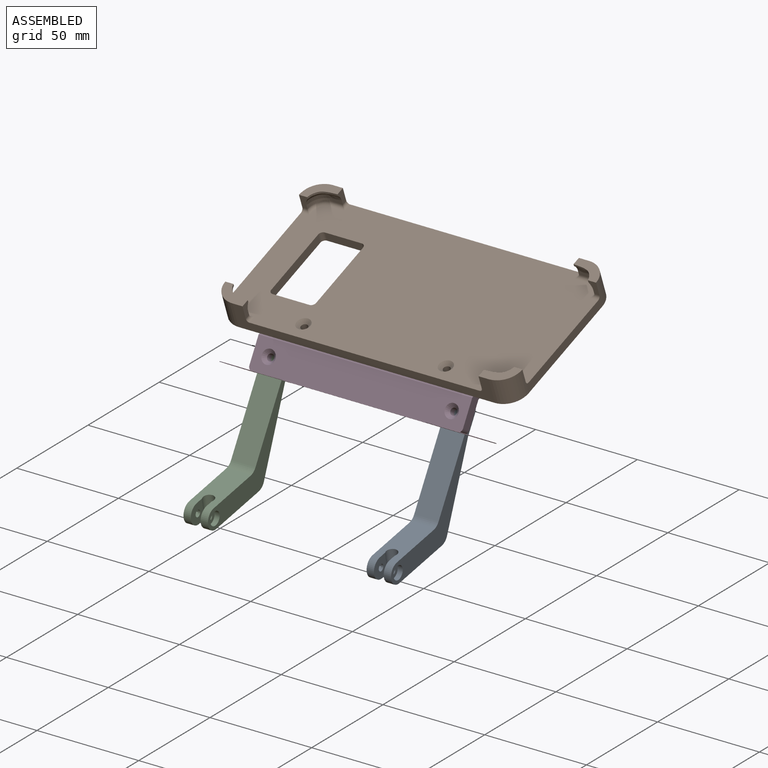
[diagram: assembled view]
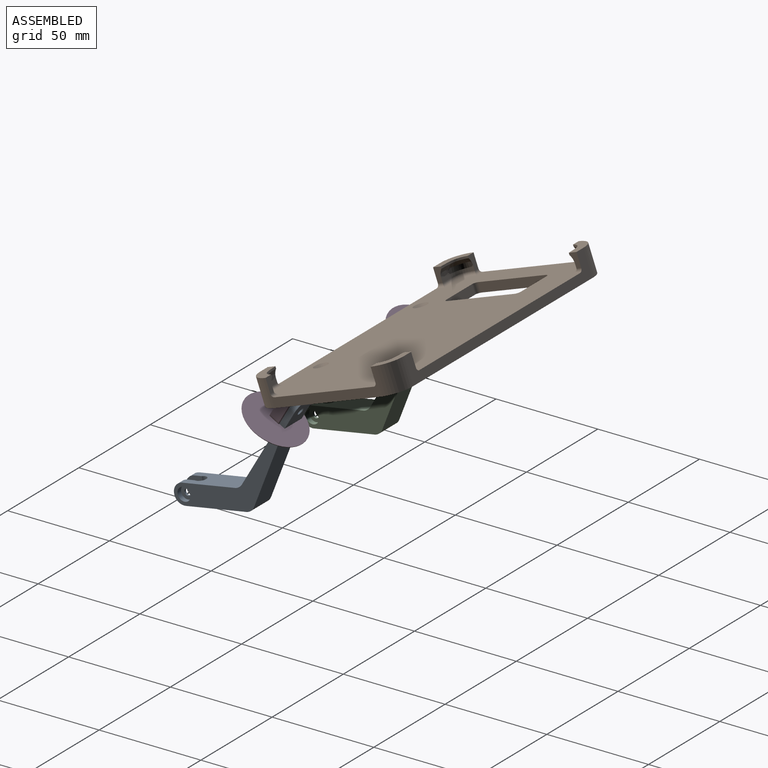
[diagram: assembled view, second angle]
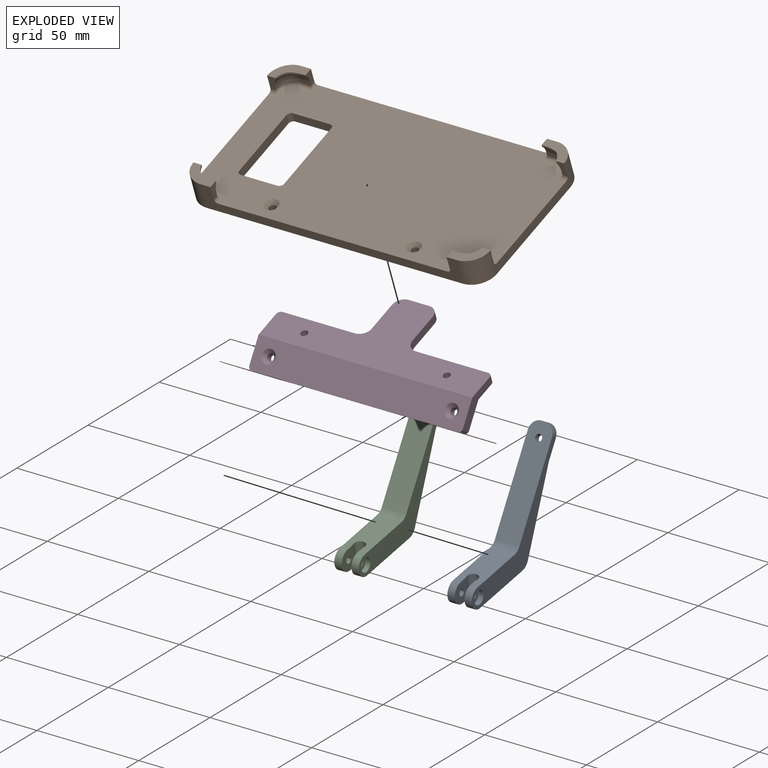
[diagram: exploded view]
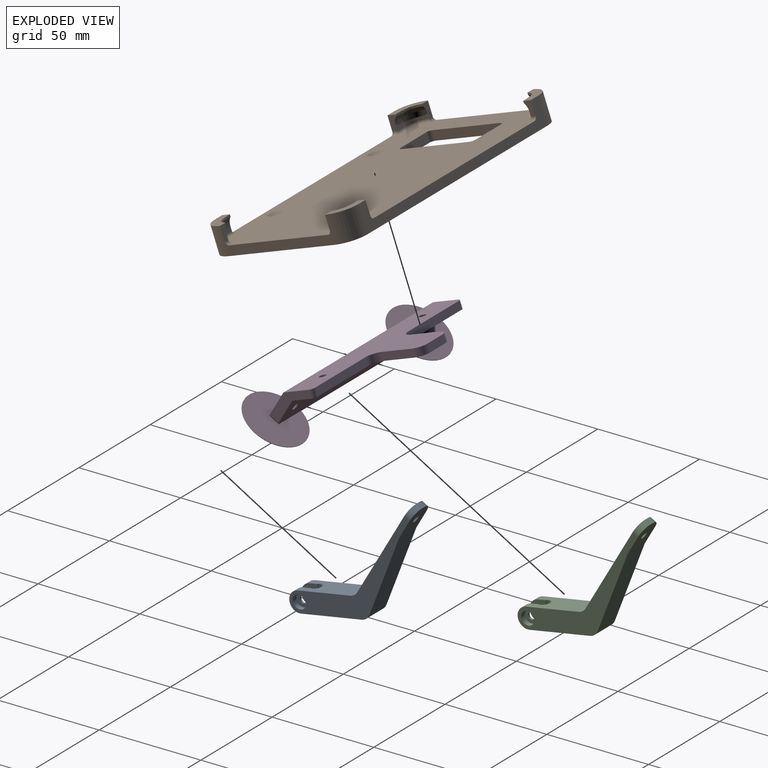
[diagram: exploded view, second angle]
ASSEMBLY  parts=4 mates=3
PART A: 29 faces, bbox 12x70.2x51 mm
  f0: plane 66.99x47.13mm, normal (-1,0,0), area 602.6mm2, adj f2,f3,f4,f6,f7,f16,f17,f18
  f1: cylinder r=1.6mm len=3.2mm, axis (1,0,0), area 11.1mm2, adj f10,f15
  f2: plane 30.17x12mm, normal (0,0,-1), area 326.1mm2, adj f0,f8,f9,f10,f11,f23,f24,f25
  f3: plane 35.12x21.11mm, normal (0,0.86,-0.52), area 491.7mm2, adj f0,f4,f8,f25
  f4: plane 12x11.49mm, normal (0,0.77,-0.64), area 160.7mm2, adj f0,f3,f5,f8,f22,f27,f28
  f5: plane 2.3x2mm, normal (0,0.64,0.77), area 6mm2, adj f4,f6,f27,f28
  f6: plane 39.18x32.87mm, normal (0,-0.77,0.64), area 594.4mm2, adj f0,f5,f8,f22,f26,f27,f28
  f7: plane 26.2x12mm, normal (0,0,1), area 278.5mm2, adj f0,f8,f9,f10,f11,f23,f24,f26
  f8: plane 66.99x47.13mm, normal (1,0,0), area 597.6mm2, adj f2,f3,f4,f6,f7,f13,f24,f25
  f9: plane 10x8.76mm, normal (-1,0,0), area 68.9mm2, adj f2,f7,f11,f12,f24
  f10: plane 10x8.76mm, normal (1,0,0), area 68.9mm2, adj f1,f2,f7,f11,f23
  f11: cylinder r=2.7mm len=10mm, axis (0,0,1), area 110.5mm2, adj f2,f7,f9,f10
  f12: cylinder r=1.6mm len=3.2mm, axis (1,0,0), area 11.1mm2, adj f9,f14
  f13: cylinder r=3.25mm len=6.5mm, axis (1,0,0), area 51.1mm2, adj f8,f14
  f14: plane 6.5x6.5mm, normal (1,0,0), area 25.1mm2, adj f12,f13
  f15: plane 6.58x5.7mm, normal (-1,0,0), area 20.1mm2, adj f1,f16,f17,f18,f19,f20,f21
  f16: plane 2.85x2.5mm, normal (0,-0.5,0.87), area 8.2mm2, adj f0,f15,f17,f21
  f17: plane 2.85x2.5mm, normal (0,0.5,0.87), area 8.2mm2, adj f0,f15,f16,f18
  f18: plane 3.29x2.5mm, normal (0,1,0), area 8.2mm2, adj f0,f15,f17,f19
  f19: plane 2.85x2.5mm, normal (0,0.5,-0.87), area 8.2mm2, adj f0,f15,f18,f20
  f20: plane 2.85x2.5mm, normal (0,-0.5,-0.87), area 8.2mm2, adj f0,f15,f19,f21
  f21: plane 3.29x2.5mm, normal (0,-1,0), area 8.2mm2, adj f0,f15,f16,f20
  f22: cylinder r=1.65mm len=4.46mm, axis (0,-0.77,0.64), area 31.1mm2, adj f4,f6
  f23: cylinder r=5mm len=10mm, axis (-1,0,0), area 56.5mm2, adj f0,f2,f7,f10
  f24: cylinder r=5mm len=10mm, axis (-1,0,0), area 56.5mm2, adj f2,f7,f8,f9
  f25: cylinder r=5mm len=12mm, axis (1,0,0), area 61.8mm2, adj f0,f2,f3,f8
  f26: cylinder r=5mm len=12mm, axis (1,0,0), area 52.4mm2, adj f0,f6,f7,f8
  f27: cylinder r=5mm len=5.76mm, axis (0,-0.77,0.64), area 23.6mm2, adj f0,f4,f5,f6
  f28: cylinder r=5mm len=5.76mm, axis (0,0.77,-0.64), area 23.6mm2, adj f4,f5,f6,f8
PART B: 70 faces, bbox 147x76x14 mm
  f0: plane 146x75mm, normal (0,0,1), area 9598.9mm2, adj f3,f4,f5,f6,f41,f42,f43,f44
  f1: plane 5x2.05mm, normal (0,1,0), area 9.4mm2, adj f16,f19,f40,f65
  f2: plane 5x2.05mm, normal (0,-1,0), area 9.4mm2, adj f15,f17,f38,f61
  f3: plane 126x13mm, normal (0,-1,0), area 653.1mm2, adj f0,f7,f10,f19,f20,f28,f32,f49
  f4: plane 126x13mm, normal (0,1,0), area 653.1mm2, adj f0,f8,f9,f17,f18,f26,f30,f49
  f5: plane 55x6.1mm, normal (1,0,0), area 248.6mm2, adj f0,f7,f8,f49,f54,f66
  f6: plane 55x6.1mm, normal (-1,0,0), area 248.6mm2, adj f0,f9,f10,f49,f58,f62
  f7: cylinder r=10mm len=13mm, axis (0,0,1), area 204.2mm2, adj f3,f5,f24,f32,f49
  f8: cylinder r=10mm len=13mm, axis (0,0,-1), area 204.2mm2, adj f4,f5,f23,f30,f49
  f9: cylinder r=10mm len=13mm, axis (0,0,1), area 204.2mm2, adj f4,f6,f21,f26,f49
  f10: cylinder r=10mm len=13mm, axis (0,0,-1), area 204.2mm2, adj f3,f6,f22,f28,f49
  f11: plane 5x2.05mm, normal (0,1,0), area 9.4mm2, adj f13,f20,f34,f69
  f12: plane 5x2.05mm, normal (0,-1,0), area 9.4mm2, adj f14,f18,f36,f57
  f13: cylinder r=7.5mm len=7.5mm, axis (0,0,1), area 20.1mm2, adj f11,f24,f33,f67
  f14: cylinder r=7.5mm len=7.5mm, axis (0,0,-1), area 20.1mm2, adj f12,f23,f35,f55
  f15: cylinder r=7.5mm len=7.5mm, axis (0,0,1), area 20.1mm2, adj f2,f21,f37,f60
  f16: cylinder r=7.5mm len=7.5mm, axis (0,0,-1), area 20.1mm2, adj f1,f22,f39,f64
  f17: plane 6.92x4.02mm, normal (1,0,0), area 20.6mm2, adj f2,f4,f25,f26,f38,f59
  f18: plane 6.93x4.03mm, normal (-1,0,0), area 20.6mm2, adj f4,f12,f29,f30,f36,f56
  f19: plane 6.92x4.02mm, normal (1,0,0), area 20.6mm2, adj f1,f3,f27,f28,f40,f63
  f20: plane 6.93x4.03mm, normal (-1,0,0), area 20.6mm2, adj f3,f11,f31,f32,f34,f68
  f21: plane 7.92x5.02mm, normal (0,-1,0), area 20.7mm2, adj f9,f15,f25,f26,f37,f58
  f22: plane 7.89x4.99mm, normal (0,1,0), area 20.7mm2, adj f10,f16,f27,f28,f39,f62
  f23: plane 7.89x4.99mm, normal (0,-1,0), area 20.7mm2, adj f8,f14,f29,f30,f35,f54
  f24: plane 7.92x5.02mm, normal (0,1,0), area 20.7mm2, adj f7,f13,f31,f32,f33,f66
  f25: extruded ~11x6mm, area 13.8mm2, adj f17,f21,f26,f37,f38
  f26: plane 15x10mm, normal (0,0,1), area 74.8mm2, adj f4,f9,f17,f21,f25
  f27: extruded ~11x6mm, area 13.8mm2, adj f19,f22,f28,f39,f40
  f28: plane 15x10mm, normal (0,0,1), area 74.8mm2, adj f3,f10,f19,f22,f27
  f29: extruded ~11x6mm, area 13.8mm2, adj f18,f23,f30,f35,f36
  f30: plane 15x10mm, normal (0,0,1), area 74.8mm2, adj f4,f8,f18,f23,f29
  f31: extruded ~11x6mm, area 13.8mm2, adj f20,f24,f32,f33,f34
  f32: plane 15x10mm, normal (0,0,1), area 74.8mm2, adj f3,f7,f20,f24,f31
  f33: bspline ~11.03x7.5mm, area 51.5mm2, adj f13,f24,f31,f34
  f34: bspline ~5.83x4.34mm, area 24.4mm2, adj f11,f20,f31,f33
  f35: bspline ~11.13x8.19mm, area 51.4mm2, adj f14,f23,f29,f36
  f36: bspline ~5.83x4.34mm, area 24.4mm2, adj f12,f18,f29,f35
  f37: bspline ~11.03x7.5mm, area 51.5mm2, adj f15,f21,f25,f38
  f38: bspline ~5.83x4.34mm, area 24.4mm2, adj f2,f17,f25,f37
  f39: bspline ~11.13x8.19mm, area 51.4mm2, adj f16,f22,f27,f40
  f40: bspline ~5.83x4.34mm, area 24.4mm2, adj f1,f19,f27,f39
  f41: plane 18x4.5mm, normal (0,1,0), area 81mm2, adj f0,f45,f48,f49
  f42: plane 35x4.5mm, normal (-1,0,0), area 157.5mm2, adj f0,f45,f46,f49
  f43: plane 18x4.5mm, normal (0,-1,0), area 81mm2, adj f0,f46,f47,f49
  f44: plane 35x4.5mm, normal (1,0,0), area 157.5mm2, adj f0,f47,f48,f49
  f45: cylinder r=2mm len=4.5mm, axis (0,0,-1), area 14.1mm2, adj f0,f41,f42,f49
  f46: cylinder r=2mm len=4.5mm, axis (0,0,1), area 14.1mm2, adj f0,f42,f43,f49
  f47: cylinder r=2mm len=4.5mm, axis (0,0,-1), area 14.1mm2, adj f0,f43,f44,f49
  f48: cylinder r=2mm len=4.5mm, axis (0,0,1), area 14.1mm2, adj f0,f41,f44,f49
  f49: plane 146x75mm, normal (0,0,-1), area 9992.5mm2, adj f3,f4,f5,f6,f7,f8,f9,f10
  f50: cylinder r=1.65mm len=3.3mm, axis (0,0,1), area 28.9mm2, adj f49,f51
  f51: cone r=1.65mm half-angle=45deg, axis (0,0,1), area 38.1mm2, adj f0,f50
  f52: cylinder r=1.65mm len=3.3mm, axis (0,0,1), area 28.9mm2, adj f49,f53
  f53: cone r=1.65mm half-angle=45deg, axis (0,0,1), area 38.1mm2, adj f0,f52
  f54: cylinder r=1.6mm len=4.32mm, axis (1,0,0), area 8.6mm2, adj f0,f5,f23,f55
  f55: torus R=5.9mm, axis (0,0,1), area 29.6mm2, adj f0,f14,f54,f57
  f56: cylinder r=1.6mm len=4.1mm, axis (0,-1,0), area 8.3mm2, adj f0,f4,f18,f57
  f57: cylinder r=1.6mm len=6.6mm, axis (1,0,0), area 14.6mm2, adj f0,f12,f55,f56
  f58: cylinder r=1.6mm len=4.32mm, axis (1,0,0), area 8.6mm2, adj f0,f6,f21,f60
  f59: cylinder r=1.6mm len=4.1mm, axis (0,1,0), area 8.3mm2, adj f0,f4,f17,f61
  f60: torus R=5.9mm, axis (0,0,1), area 29.6mm2, adj f0,f15,f58,f61
  f61: cylinder r=1.6mm len=6.6mm, axis (1,0,0), area 14.6mm2, adj f0,f2,f59,f60
  f62: cylinder r=1.6mm len=4.32mm, axis (-1,0,0), area 8.6mm2, adj f0,f6,f22,f64
  f63: cylinder r=1.6mm len=4.1mm, axis (0,1,0), area 8.3mm2, adj f0,f3,f19,f65
  f64: torus R=5.9mm, axis (0,0,1), area 29.6mm2, adj f0,f16,f62,f65
  f65: cylinder r=1.6mm len=6.6mm, axis (-1,0,0), area 14.6mm2, adj f0,f1,f63,f64
  f66: cylinder r=1.6mm len=4.32mm, axis (-1,0,0), area 8.6mm2, adj f0,f5,f24,f67
  f67: torus R=5.9mm, axis (0,0,1), area 29.6mm2, adj f0,f13,f66,f69
  f68: cylinder r=1.6mm len=4.1mm, axis (0,-1,0), area 8.3mm2, adj f0,f3,f20,f69
  f69: cylinder r=1.6mm len=6.6mm, axis (-1,0,0), area 14.6mm2, adj f0,f11,f67,f68
PART C: same geometry as A
PART D: 30 faces, bbox 131x45.6x41.1 mm
  f0: plane 105x15mm, normal (0,0,-1), area 1495.6mm2, adj f1,f3,f5,f6,f9,f10,f14,f16
  f1: cylinder r=2mm len=5mm, axis (0,0,1), area 11mm2, adj f0,f2,f10,f29
  f2: plane 105x15mm, normal (0,0,1), area 1549.4mm2, adj f1,f3,f6,f7,f9,f10,f13,f15
  f3: cylinder r=2mm len=5mm, axis (0,0,-1), area 11mm2, adj f0,f2,f9,f27
  f4: plane 35.5x2.93mm, normal (0,-0.77,0.64), area 136mm2, adj f5,f7,f11,f22
  f5: plane 105x30.64mm, normal (0,-0.64,-0.77), area 2056.2mm2, adj f0,f4,f8,f9,f10,f11,f12,f17
  f6: plane 131x30mm, normal (0,1,0), area 1769.4mm2, adj f0,f2,f26,f28
  f7: plane 105x28.18mm, normal (0,0.64,0.77), area 1718.7mm2, adj f2,f4,f8,f9,f10,f11,f12,f17
  f8: plane 35.5x2.93mm, normal (0,-0.77,0.64), area 136mm2, adj f5,f7,f12,f23
  f9: plane 22.96x11.29mm, normal (1,0,0), area 108.6mm2, adj f0,f2,f3,f5,f7,f12
  f10: plane 22.96x11.29mm, normal (-1,0,0), area 108.6mm2, adj f0,f1,f2,f5,f7,f11
  f11: cylinder r=2mm len=4.22mm, axis (0,-0.64,-0.77), area 12mm2, adj f4,f5,f7,f10
  f12: cylinder r=2mm len=4.22mm, axis (0,0.64,0.77), area 12mm2, adj f5,f7,f8,f9
  f13: cylinder r=1.65mm len=3.3mm, axis (0,0,-1), area 34.1mm2, adj f2,f14
  f14: cone r=1.65mm half-angle=45deg, axis (0,0,-1), area 38.1mm2, adj f0,f13
  f15: cylinder r=1.65mm len=3.3mm, axis (0,0,-1), area 34.1mm2, adj f2,f16
  f16: cone r=1.65mm half-angle=45deg, axis (0,0,-1), area 38.1mm2, adj f0,f15
  f17: cylinder r=1.65mm len=5.06mm, axis (0,-0.64,-0.77), area 39.7mm2, adj f5,f7
  f18: cylinder r=1.65mm len=5.06mm, axis (0,-0.64,-0.77), area 39.7mm2, adj f5,f7
  f19: plane 13.95x12.58mm, normal (-1,0,0), area 57.5mm2, adj f5,f7,f22,f24
  f20: plane 13.95x12.58mm, normal (1,0,0), area 57.5mm2, adj f5,f7,f23,f25
  f21: plane 10x2.93mm, normal (0,-0.77,0.64), area 38.3mm2, adj f5,f7,f24,f25
  f22: cylinder r=5mm len=6.29mm, axis (0,-0.64,-0.77), area 30.1mm2, adj f4,f5,f7,f19
  f23: cylinder r=5mm len=6.29mm, axis (0,0.64,0.77), area 30.1mm2, adj f5,f7,f8,f20
  f24: cylinder r=5mm len=6.29mm, axis (0,0.64,0.77), area 30.1mm2, adj f5,f7,f19,f21
  f25: cylinder r=5mm len=6.29mm, axis (0,-0.64,-0.77), area 30.1mm2, adj f5,f7,f20,f21
  f26: cylinder r=15mm len=30mm, axis (0,1,0), area 19.6mm2, adj f0,f2,f6,f27
  f27: plane 30x29.79mm, normal (0,-1,0), area 627.6mm2, adj f0,f2,f3,f26
  f28: cylinder r=15mm len=30mm, axis (0,1,0), area 19.6mm2, adj f0,f2,f6,f29
  f29: plane 30x29.79mm, normal (0,-1,0), area 627.6mm2, adj f0,f1,f2,f28
PLACE A rot(axis=(1,0,0),10deg) t=(56.3,-1.65,9.39)mm
PLACE B rot(axis=(1,0,0),20deg) t=(17.47,69.72,81.05)mm
PLACE C rot(axis=(1,0,0),10deg) t=(-33.7,-1.65,9.39)mm
PLACE D rot(axis=(-1,0,0),120deg) t=(-35.2,34.46,66.08)mm
MATE fastened A.f22 <-> D.f16  axis (0,-0.87,0.5) through (62.3,35.04,57.09)mm
MATE parallel B.f49 <-> D.f5  axis (0,0.34,-0.94) through (21.58,70.45,79.18)mm
MATE fastened D.f13 <-> C.f22  axis (0,0.87,-0.5) through (-27.7,35.04,57.09)mm
